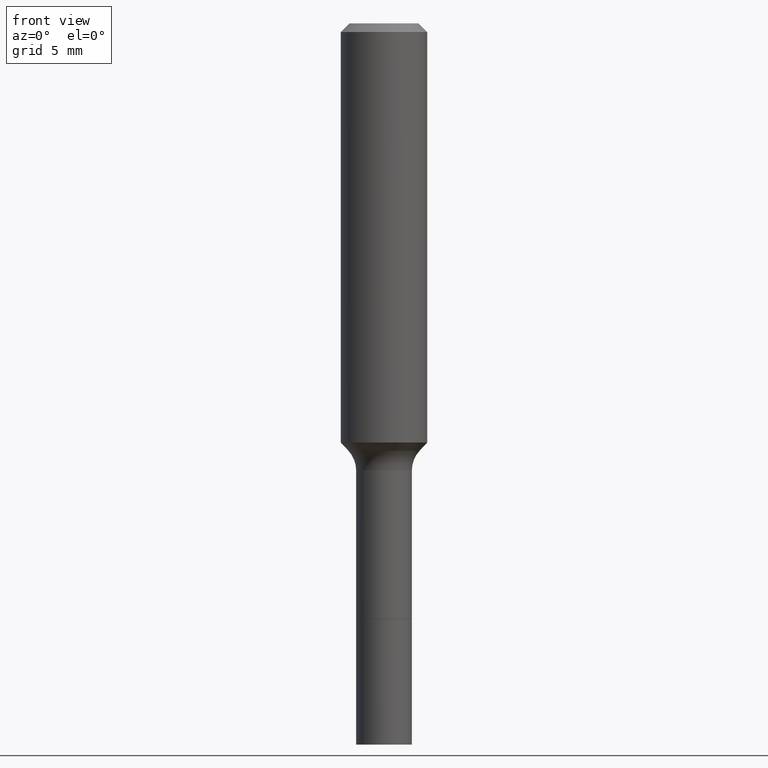
[diagram: clean part render]
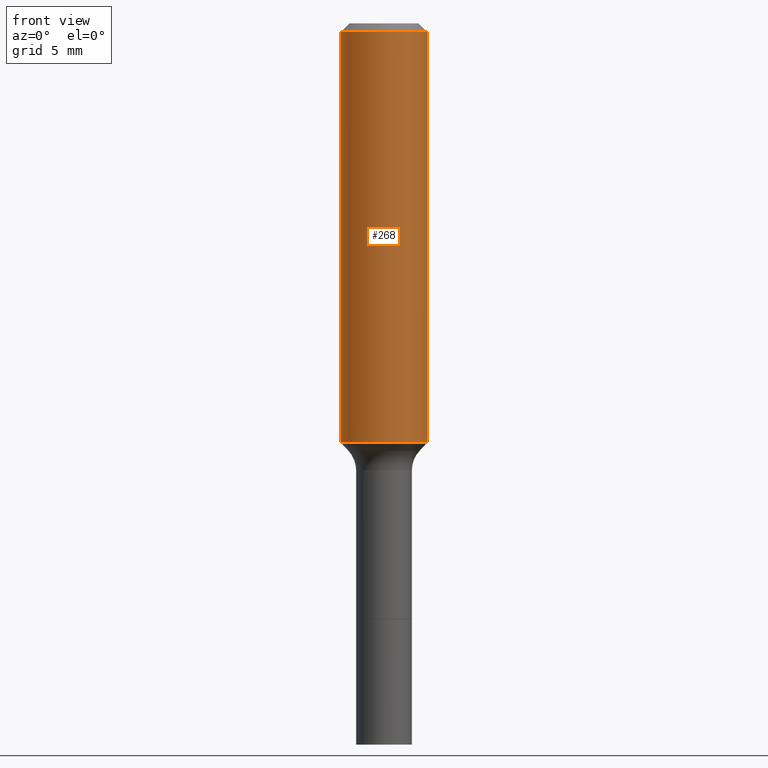
[diagram: same view with one face highlighted and labeled with its STEP entity id]
A machine part, front view. The second image highlights one B-rep face of the part: STEP entity #268.
In plain terms, the highlighted cylindrical surface (partial cylindrical patch) has radius 2.9997 mm, axis along (-0, 0, 1).
Its self-contained STEP definition (entity closure, byte-faithful):
#12 = EDGE_CURVE ( 'NONE', #181, #183, #143, .T. ) ;
#20 = DIRECTION ( 'NONE',  ( -2.445468806185136597E-29, 3.491481338843145583E-15, 1.000000000000000000 ) ) ;
#40 = CARTESIAN_POINT ( 'NONE',  ( 2.797226113460414960E-29, -3.993697548286125371E-15, -1.143840439258765329 ) ) ;
#41 = EDGE_CURVE ( 'NONE', #161, #43, #424, .T. ) ;
#43 = VERTEX_POINT ( 'NONE', #389 ) ;
#74 = DIRECTION ( 'NONE',  ( 1.000000000000000000, -6.982962677686265133E-15, 0.000000000000000000 ) ) ;
#78 = ORIENTED_EDGE ( 'NONE', *, *, #166, .T. ) ;
#105 = CARTESIAN_POINT ( 'NONE',  ( 0.1181000000000000660, -8.246878922347485584E-16, 5.758764772215003944E-30 ) ) ;
#140 = DIRECTION ( 'NONE',  ( -2.445468806185136877E-29, 3.491481338843145188E-15, 1.000000000000000000 ) ) ;
#143 = LINE ( 'NONE', #105, #453 ) ;
#161 = VERTEX_POINT ( 'NONE', #198 ) ;
#166 = EDGE_CURVE ( 'NONE', #161, #181, #194, .T. ) ;
#167 = DIRECTION ( 'NONE',  ( -2.445468806185136597E-29, 3.491481338843145583E-15, 1.000000000000000000 ) ) ;
#170 = CARTESIAN_POINT ( 'NONE',  ( 0.1180999999999999966, -9.071566814582237199E-16, -0.02362000000000014435 ) ) ;
#177 = DIRECTION ( 'NONE',  ( 1.000000000000000000, -6.982962677686266711E-15, 0.000000000000000000 ) ) ;
#181 = VERTEX_POINT ( 'NONE', #357 ) ;
#183 = VERTEX_POINT ( 'NONE', #170 ) ;
#194 = CIRCLE ( 'NONE', #258, 0.1181000000000001354 ) ;
#198 = CARTESIAN_POINT ( 'NONE',  ( -0.1181000000000001354, -3.154546577353446386E-15, -1.143840439258765329 ) ) ;
#217 = AXIS2_PLACEMENT_3D ( 'NONE', #481, #396, #471 ) ;
#250 = AXIS2_PLACEMENT_3D ( 'NONE', #260, #20, #177 ) ;
#258 = AXIS2_PLACEMENT_3D ( 'NONE', #40, #167, #74 ) ;
#260 = CARTESIAN_POINT ( 'NONE',  ( 5.776197320209328408E-31, -8.246878922347560526E-17, -0.02362000000000014435 ) ) ;
#267 = DIRECTION ( 'NONE',  ( -2.445468806185136877E-29, 3.491481338843145188E-15, 1.000000000000000000 ) ) ;
#268 = ADVANCED_FACE ( 'NONE', ( #400 ), #515, .T. ) ;
#285 = CIRCLE ( 'NONE', #250, 0.1180999999999999966 ) ;
#299 = VECTOR ( 'NONE', #140, 39.37007874015748143 ) ;
#301 = ORIENTED_EDGE ( 'NONE', *, *, #41, .F. ) ;
#305 = CARTESIAN_POINT ( 'NONE',  ( -0.1181000000000000660, 8.391509709326787887E-16, -5.809262341591047287E-30 ) ) ;
#357 = CARTESIAN_POINT ( 'NONE',  ( 0.1181000000000001354, -4.818385440520874423E-15, -1.143840439258765329 ) ) ;
#389 = CARTESIAN_POINT ( 'NONE',  ( -0.1180999999999999966, -1.198932197822121231E-15, -0.02362000000000014435 ) ) ;
#396 = DIRECTION ( 'NONE',  ( -2.445468806185136597E-29, 3.491481338843145583E-15, 1.000000000000000000 ) ) ;
#399 = ORIENTED_EDGE ( 'NONE', *, *, #12, .T. ) ;
#400 = FACE_OUTER_BOUND ( 'NONE', #435, .T. ) ;
#424 = LINE ( 'NONE', #305, #299 ) ;
#435 = EDGE_LOOP ( 'NONE', ( #301, #78, #399, #479 ) ) ;
#453 = VECTOR ( 'NONE', #267, 39.37007874015748143 ) ;
#471 = DIRECTION ( 'NONE',  ( 1.000000000000000000, -6.982962677686266711E-15, 4.876176775795936353E-29 ) ) ;
#479 = ORIENTED_EDGE ( 'NONE', *, *, #504, .F. ) ;
#481 = CARTESIAN_POINT ( 'NONE',  ( 0.000000000000000000, 0.000000000000000000, 0.000000000000000000 ) ) ;
#504 = EDGE_CURVE ( 'NONE', #43, #183, #285, .T. ) ;
#515 = CYLINDRICAL_SURFACE ( 'NONE', #217, 0.1181000000000000660 ) ;